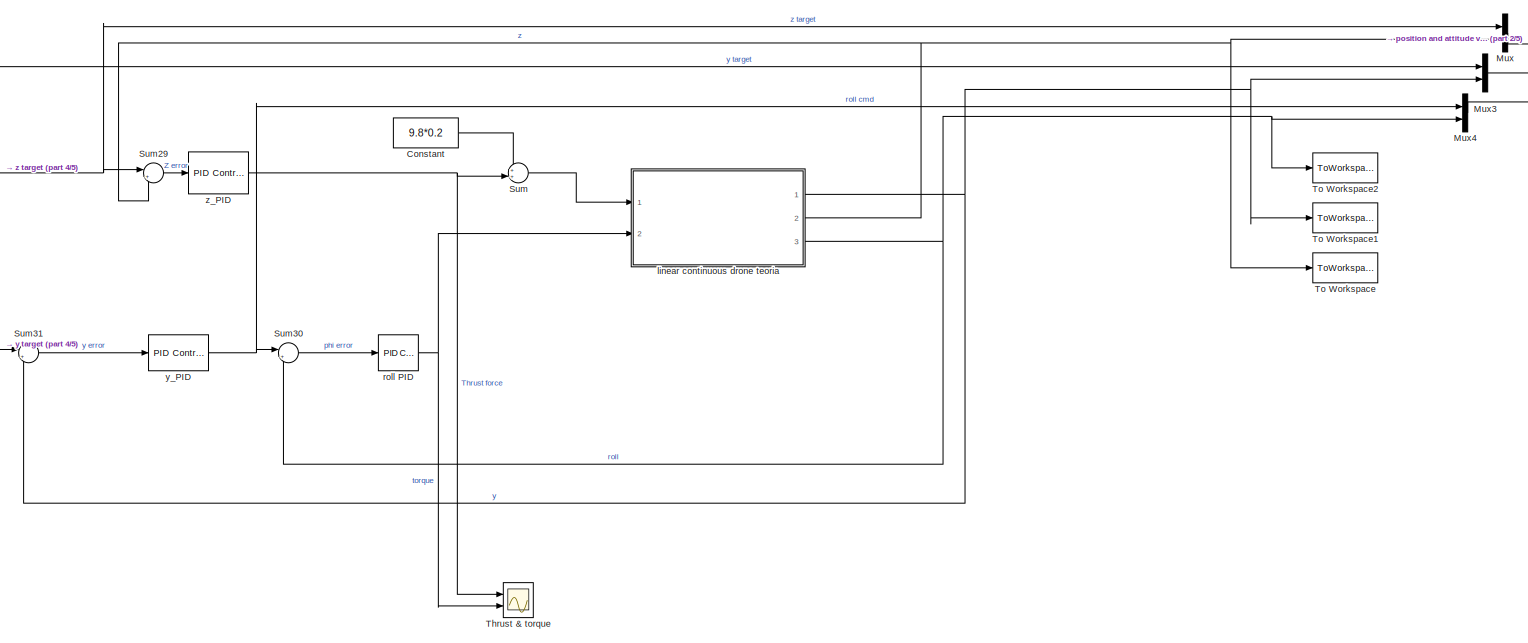
[diagram: root canvas - part 1/5, top center region]
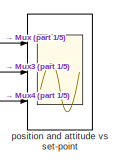
[diagram: root canvas - part 2/5, top right region]
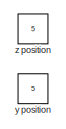
[diagram: root canvas - part 3/5, top left region]
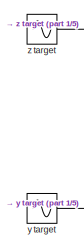
[diagram: root canvas - part 4/5, top left region]
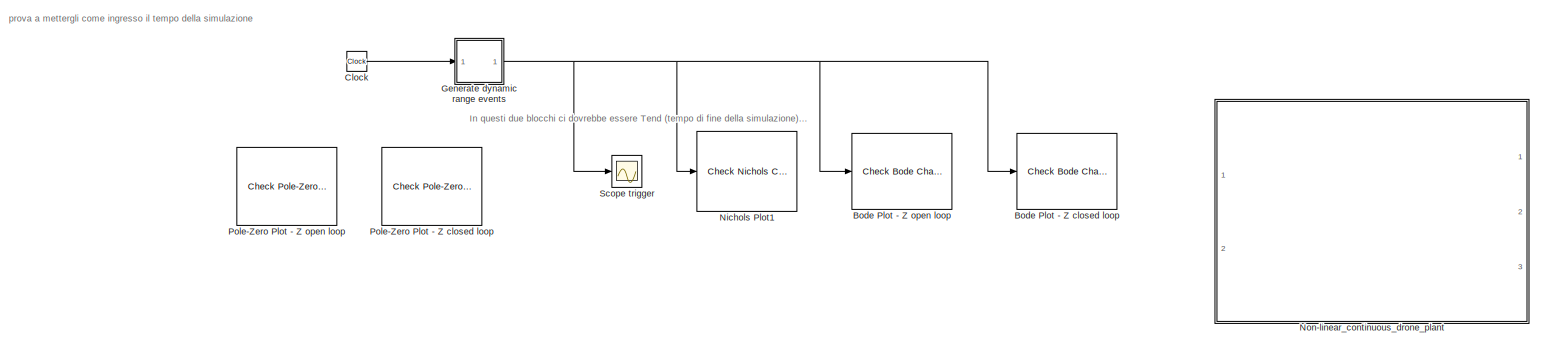
[diagram: root canvas - part 5/5, full width, bottom band]
MODEL slx_3c4b49e2ad88
KIND model
CONFIG AbsTol = auto
CONFIG EnableMultiTasking = off
CONFIG FixedStep = 0.01
CONFIG MaxStep = auto
CONFIG MinStep = auto
CONFIG RelTol = 1e-3
CONFIG SampleTimeConstraint = Unconstrained
CONFIG Solver = FixedStepAuto
CONFIG SolverName = FixedStepAuto
CONFIG StartTime = 0.0
CONFIG StopTime = 100
BLOCK [Reference] Bode Plot - Z closed loop  REF=slctrlblks/Model Verification/Check Bode 
Characteristics
  Commented = on
  InstantiateOnLoad = on
  Ports = [1]
  SourceBlock = slctrlblks/Model Verification/Check Bode \nCharacteristics
  SourceProductBaseCode = SD
  SourceType = Checks_Bode
BLOCK [Reference] Bode Plot - Z open loop  REF=slctrlblks/Model Verification/Check Bode 
Characteristics
  Commented = on
  InstantiateOnLoad = on
  Ports = [1]
  SourceBlock = slctrlblks/Model Verification/Check Bode \nCharacteristics
  SourceProductBaseCode = SD
  SourceType = Checks_Bode
BLOCK [Clock] Clock
  Commented = on
BLOCK [Constant] Constant
  Value = 9.8*0.2
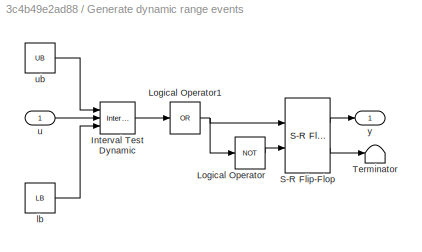
BLOCK [SubSystem] Generate dynamic range events
  Commented = on
  NameLocation = top
  Ports = [1, 1]
  RequestExecContextInheritance = off
BLOCK [Reference] Generate dynamic range events/Interval Test Dynamic  REF=simulink/Logic and Bit
Operations/Interval Test
Dynamic
  Ports = [3, 1]
  SourceBlock = simulink/Logic and Bit\nOperations/Interval Test\nDynamic
  SourceProductBaseCode = SL
  SourceType = Interval Test Dynamic
BLOCK [Logic] Generate dynamic range events/Logical Operator
  AllPortsSameDT = off
  Operator = NOT
  OutDataTypeStr = boolean
  Ports = [1, 1]
BLOCK [Logic] Generate dynamic range events/Logical Operator1
  AllPortsSameDT = off
  Inputs = 1
  Operator = OR
  OutDataTypeStr = boolean
  Ports = [1, 1]
BLOCK [Reference] Generate dynamic range events/S-R Flip-Flop  REF=simulink_extras/Flip Flops/S-R
Flip-Flop
  Ports = [2, 2]
  SourceBlock = simulink_extras/Flip Flops/S-R\nFlip-Flop
  SourceProductBaseCode = SL
  SourceType = SRFlipFlop
BLOCK [Terminator] Generate dynamic range events/Terminator
BLOCK [Constant] Generate dynamic range events/lb
  Value = LB
BLOCK [Inport] Generate dynamic range events/u
BLOCK [Constant] Generate dynamic range events/ub
  Value = UB
BLOCK [Outport] Generate dynamic range events/y
  VectorParamsAs1DForOutWhenUnconnected = off
BLOCK [Mux] Mux
  DisplayOption = bar
  Inputs = 2
  Ports = [2, 1]
BLOCK [Mux] Mux3
  DisplayOption = bar
  Inputs = 2
  Ports = [2, 1]
BLOCK [Mux] Mux4
  DisplayOption = bar
  Inputs = 2
  Ports = [2, 1]
BLOCK [Reference] Nichols Plot1  REF=slctrlblks/Model Verification/Check Nichols
Characteristics
  Commented = on
  InstantiateOnLoad = on
  NameLocation = top
  Ports = [1]
  SourceBlock = slctrlblks/Model Verification/Check Nichols\nCharacteristics
  SourceProductBaseCode = SD
  SourceType = Checks_Nichols
BLOCK [SubSystem] Non-linear_continuous_drone_plant
  Commented = on
  Ports = [2, 3]
  ReferencedSubsystem = Non_linear_continuous_drone_plant
  RequestExecContextInheritance = off
BLOCK [Reference] Pole-Zero Plot - Z closed loop  REF=slctrlblks/Model Verification/Check Pole-Zero
Characteristics
  Commented = on
  InstantiateOnLoad = on
  Ports = []
  SourceBlock = slctrlblks/Model Verification/Check Pole-Zero\nCharacteristics
  SourceProductBaseCode = SD
  SourceType = Checks_PZMap
BLOCK [Reference] Pole-Zero Plot - Z open loop  REF=slctrlblks/Model Verification/Check Pole-Zero
Characteristics
  Commented = on
  InstantiateOnLoad = on
  Ports = []
  SourceBlock = slctrlblks/Model Verification/Check Pole-Zero\nCharacteristics
  SourceProductBaseCode = SD
  SourceType = Checks_PZMap
BLOCK [Scope] Scope trigger
  Commented = on
  Floating = off
  NumInputPorts = 1
  Ports = [1]
  ScopeSpecificationString = Simulink.scopes.TimeScopeBlockCfg('CurrentConfiguration', extmgr.ConfigurationSet(extmgr.Configuration('Core','General UI',true),extmgr.Configuration('Core','Source UI',true),extmgr.Configuration('Sources','WiredSimulink',true,'DataLoggingVariableName','ScopeData2'),extmgr.Configuration('Visuals','Time Domain',true,'SerializedDisplays',{struct('MinYLimReal','-0.125','MaxYLimReal','1.125','YLabelRe...<+1377ch>
BLOCK [Sum] Sum
  Inputs = ++|
  Ports = [2, 1]
BLOCK [Sum] Sum29
  Inputs = |+-
  Ports = [2, 1]
BLOCK [Sum] Sum30
  Inputs = |+-
  Ports = [2, 1]
BLOCK [Sum] Sum31
  Inputs = |+-
  Ports = [2, 1]
BLOCK [Scope] Thrust & torque
  Floating = off
  NumInputPorts = 2
  Ports = [2]
  ScopeSpecificationString = Simulink.scopes.TimeScopeBlockCfg('CurrentConfiguration', extmgr.ConfigurationSet(extmgr.Configuration('Core','General UI',true),extmgr.Configuration('Core','Source UI',true),extmgr.Configuration('Sources','WiredSimulink',true,'DataLoggingVariableName','ScopeData13'),extmgr.Configuration('Visuals','Time Domain',true,'SerializedDisplays',{struct('MinYLimReal','-3.83413','MaxYLimReal','33.75935','YL...<+1490ch>
BLOCK [ToWorkspace] To Workspace
  FixptAsFi = on
  MaxDataPoints = inf
  Ports = [1]
  SampleTime = -1
  VariableName = zout
BLOCK [ToWorkspace] To Workspace1
  FixptAsFi = on
  MaxDataPoints = inf
  Ports = [1]
  SampleTime = -1
  VariableName = yout
BLOCK [ToWorkspace] To Workspace2
  FixptAsFi = on
  MaxDataPoints = inf
  Ports = [1]
  SampleTime = -1
  VariableName = rollout
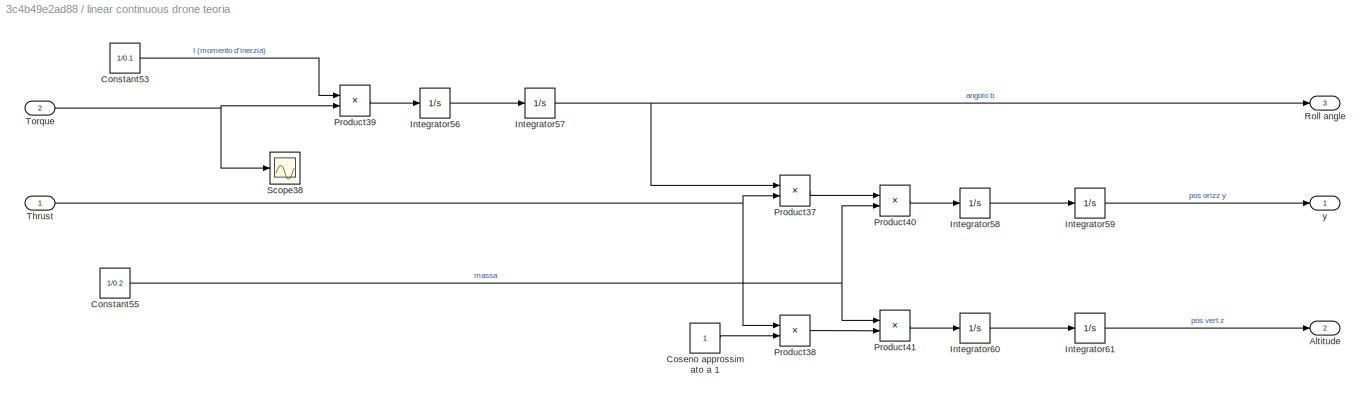
BLOCK [SubSystem] linear continuous drone teoria
  Ports = [2, 3]
  RequestExecContextInheritance = off
BLOCK [Outport] linear continuous drone teoria/Altitude
  Description = z position
  Port = 2
  Tag = z position
BLOCK [Constant] linear continuous drone teoria/Constant53
  Value = 1/0.1
BLOCK [Constant] linear continuous drone teoria/Constant55
  Value = 1/0.2
BLOCK [Constant] linear continuous drone teoria/Coseno approssimato a 1
BLOCK [Integrator] linear continuous drone teoria/Integrator56
  Ports = [1, 1]
BLOCK [Integrator] linear continuous drone teoria/Integrator57
  Ports = [1, 1]
BLOCK [Integrator] linear continuous drone teoria/Integrator58
  Ports = [1, 1]
BLOCK [Integrator] linear continuous drone teoria/Integrator59
  Ports = [1, 1]
BLOCK [Integrator] linear continuous drone teoria/Integrator60
  Ports = [1, 1]
BLOCK [Integrator] linear continuous drone teoria/Integrator61
  Ports = [1, 1]
BLOCK [Product] linear continuous drone teoria/Product37
  Ports = [2, 1]
BLOCK [Product] linear continuous drone teoria/Product38
  Ports = [2, 1]
BLOCK [Product] linear continuous drone teoria/Product39
  Ports = [2, 1]
BLOCK [Product] linear continuous drone teoria/Product40
  Ports = [2, 1]
BLOCK [Product] linear continuous drone teoria/Product41
  Ports = [2, 1]
BLOCK [Outport] linear continuous drone teoria/Roll angle
  Description = roll angle
  Port = 3
  Tag = roll angle
BLOCK [Scope] linear continuous drone teoria/Scope38
  Floating = off
  NumInputPorts = 1
  Ports = [1]
  ScopeSpecificationString = Simulink.scopes.TimeScopeBlockCfg('CurrentConfiguration', extmgr.ConfigurationSet(extmgr.Configuration('Core','General UI',true),extmgr.Configuration('Core','Source UI',true),extmgr.Configuration('Sources','WiredSimulink',true,'DataLoggingVariableName','ScopeData2'),extmgr.Configuration('Visuals','Time Domain',true,'SerializedDisplays',{struct('MinYLimReal','-0.57025','MaxYLimReal','2.70528','YLab...<+1413ch>
BLOCK [Inport] linear continuous drone teoria/Thrust
  Description = torque
  Tag = torque
BLOCK [Inport] linear continuous drone teoria/Torque
  Description = thrust
  Port = 2
  Tag = thrust
BLOCK [Outport] linear continuous drone teoria/y
  Description = y position
  Tag = y position
BLOCK [Scope] position and attitude vs set-point
  Floating = off
  NumInputPorts = 3
  Ports = [3]
  ScopeSpecificationString = Simulink.scopes.TimeScopeBlockCfg('CurrentConfiguration', extmgr.ConfigurationSet(extmgr.Configuration('Core','General UI',true),extmgr.Configuration('Core','Source UI',true),extmgr.Configuration('Sources','WiredSimulink',true,'DataLoggingVariableName','ScopeData1'),extmgr.Configuration('Visuals','Time Domain',true,'SerializedDisplays',{struct('MinYLimReal','-3.98353','MaxYLimReal','3.96306','YLab...<+2884ch>
BLOCK [Reference] roll PID  REF=simulink/Continuous/PID Controller
  Ports = [1, 1]
  SourceBlock = simulink/Continuous/PID Controller
  SourceProductBaseCode = SL
  SourceType = PID 1dof
BLOCK [Constant] y position
  Commented = on
  Value = 5
BLOCK [Sin] y target
  Amplitude = 2
  Frequency = 0.25
  Ports = [0, 1]
  SampleTime = 0
BLOCK [Reference] y_PID  REF=simulink/Continuous/PID Controller
  Ports = [1, 1]
  SourceBlock = simulink/Continuous/PID Controller
  SourceProductBaseCode = SL
  SourceType = PID 1dof
BLOCK [Constant] z position
  Commented = on
  Value = 5
BLOCK [Sin] z target
  Amplitude = 3
  Frequency = 0.5
  Ports = [0, 1]
  SampleTime = 0
BLOCK [Reference] z_PID  REF=simulink/Continuous/PID Controller
  Ports = [1, 1]
  SourceBlock = simulink/Continuous/PID Controller
  SourceProductBaseCode = SL
  SourceType = PID 1dof
ANNOTATION (root): In questi due blocchi ci dovrebbe essere Tend (tempo di fine della simulazione); io ci ho messo direttamente 100
ANNOTATION (root): prova a mettergli come ingresso il tempo della simulazione
LINE Clock:1 -> Generate dynamic range events:1
LINE Constant:1 -> Sum:1
LINE Generate dynamic range events/Interval Test Dynamic:1 -> Generate dynamic range events/Logical Operator1:1
NET Generate dynamic range events/Logical Operator1:1 -> Generate dynamic range events/Logical Operator:1, Generate dynamic range events/S-R Flip-Flop:1
LINE Generate dynamic range events/Logical Operator:1 -> Generate dynamic range events/S-R Flip-Flop:2
LINE Generate dynamic range events/S-R Flip-Flop:1 -> Generate dynamic range events/y:1
LINE Generate dynamic range events/S-R Flip-Flop:2 -> Generate dynamic range events/Terminator:1
LINE Generate dynamic range events/lb:1 -> Generate dynamic range events/Interval Test Dynamic:3
LINE Generate dynamic range events/u:1 -> Generate dynamic range events/Interval Test Dynamic:2
LINE Generate dynamic range events/ub:1 -> Generate dynamic range events/Interval Test Dynamic:1
NET Generate dynamic range events:1 -> Bode Plot - Z closed loop:1, Bode Plot - Z open loop:1, Nichols Plot1:1, Scope trigger:1
LINE Mux3:1 -> position and attitude vs set-point:2
LINE Mux4:1 -> position and attitude vs set-point:3
LINE Mux:1 -> position and attitude vs set-point:1
LINE Sum29:1 -> z_PID:1
LINE Sum30:1 -> roll PID:1
LINE Sum31:1 -> y_PID:1
LINE Sum:1 -> linear continuous drone teoria:1
LINE linear continuous drone teoria/Constant53:1 -> linear continuous drone teoria/Product39:1
NET linear continuous drone teoria/Constant55:1 -> linear continuous drone teoria/Product40:2, linear continuous drone teoria/Product41:1
LINE linear continuous drone teoria/Coseno approssimato a 1:1 -> linear continuous drone teoria/Product38:2
LINE linear continuous drone teoria/Integrator56:1 -> linear continuous drone teoria/Integrator57:1
NET linear continuous drone teoria/Integrator57:1 -> linear continuous drone teoria/Product37:1, linear continuous drone teoria/Roll angle:1
LINE linear continuous drone teoria/Integrator58:1 -> linear continuous drone teoria/Integrator59:1
LINE linear continuous drone teoria/Integrator59:1 -> linear continuous drone teoria/y:1
LINE linear continuous drone teoria/Integrator60:1 -> linear continuous drone teoria/Integrator61:1
LINE linear continuous drone teoria/Integrator61:1 -> linear continuous drone teoria/Altitude:1
LINE linear continuous drone teoria/Product37:1 -> linear continuous drone teoria/Product40:1
LINE linear continuous drone teoria/Product38:1 -> linear continuous drone teoria/Product41:2
LINE linear continuous drone teoria/Product39:1 -> linear continuous drone teoria/Integrator56:1
LINE linear continuous drone teoria/Product40:1 -> linear continuous drone teoria/Integrator58:1
LINE linear continuous drone teoria/Product41:1 -> linear continuous drone teoria/Integrator60:1
NET linear continuous drone teoria/Thrust:1 -> linear continuous drone teoria/Product37:2, linear continuous drone teoria/Product38:1
NET linear continuous drone teoria/Torque:1 -> linear continuous drone teoria/Product39:2, linear continuous drone teoria/Scope38:1
NET linear continuous drone teoria:1 -> Mux3:2, Sum31:2, To Workspace1:1
NET linear continuous drone teoria:2 -> Mux:2, Sum29:2, To Workspace:1
NET linear continuous drone teoria:3 -> Mux4:2, Sum30:2, To Workspace2:1
NET roll PID:1 -> Thrust & torque:2, linear continuous drone teoria:2
NET y target:1 -> Mux3:1, Sum31:1
NET y_PID:1 -> Mux4:1, Sum30:1
NET z target:1 -> Mux:1, Sum29:1
NET z_PID:1 -> Sum:2, Thrust & torque:1
note: NET lines group one-source signal fan-out (src -> all destinations, sorted); 1:1 wires keep LINE
